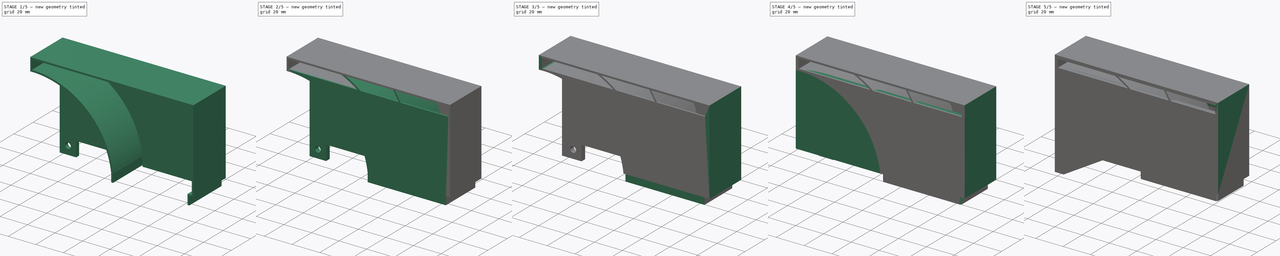
[diagram: build sequence overview — one tinted view per stage of 5, left to right]
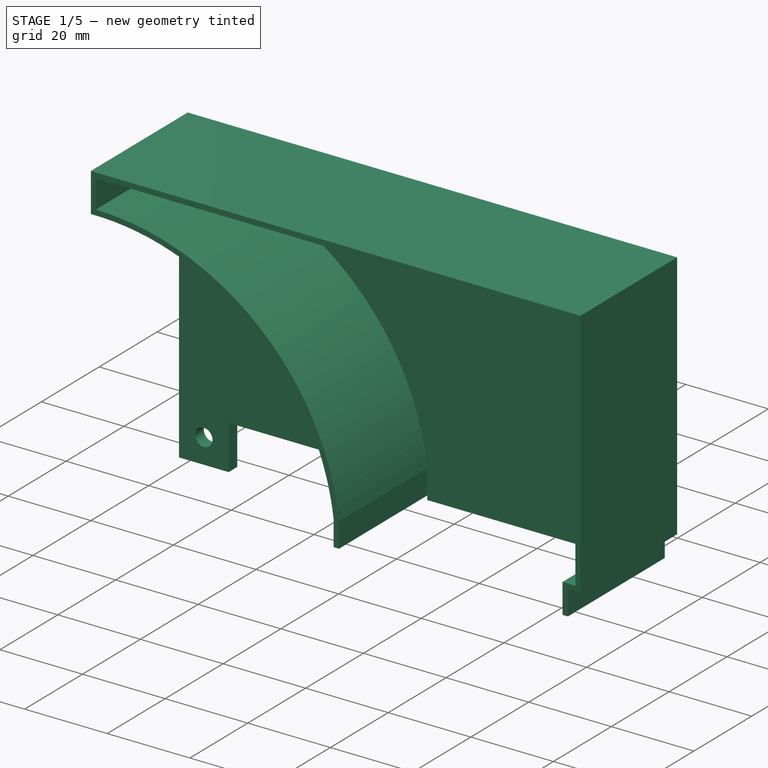
[diagram: stage 1 of 5 — iso view after this stage's code; geometry added in this stage tinted green]
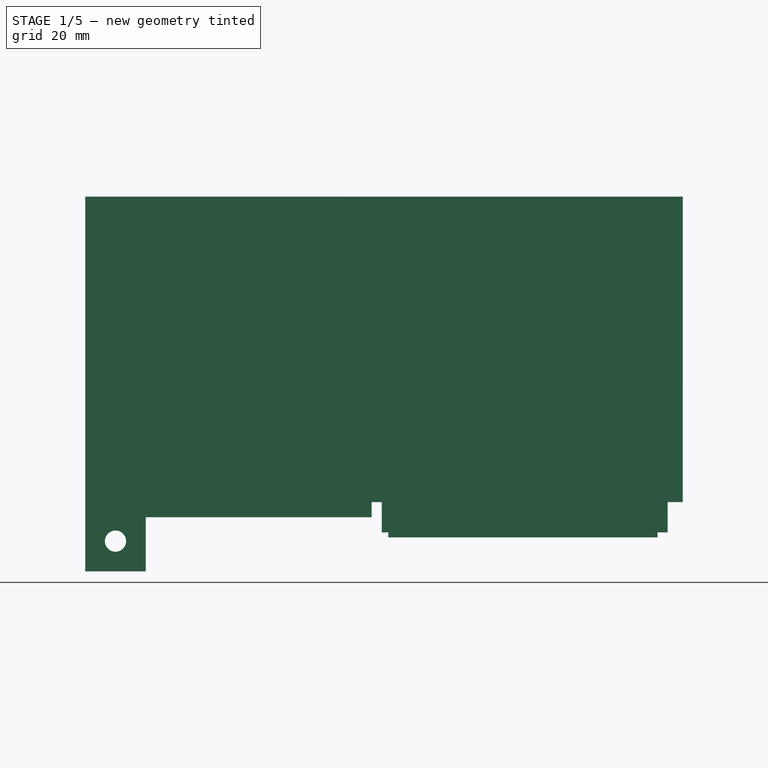
[diagram: stage 1 of 5 — front view after this stage's code; geometry added in this stage tinted green]
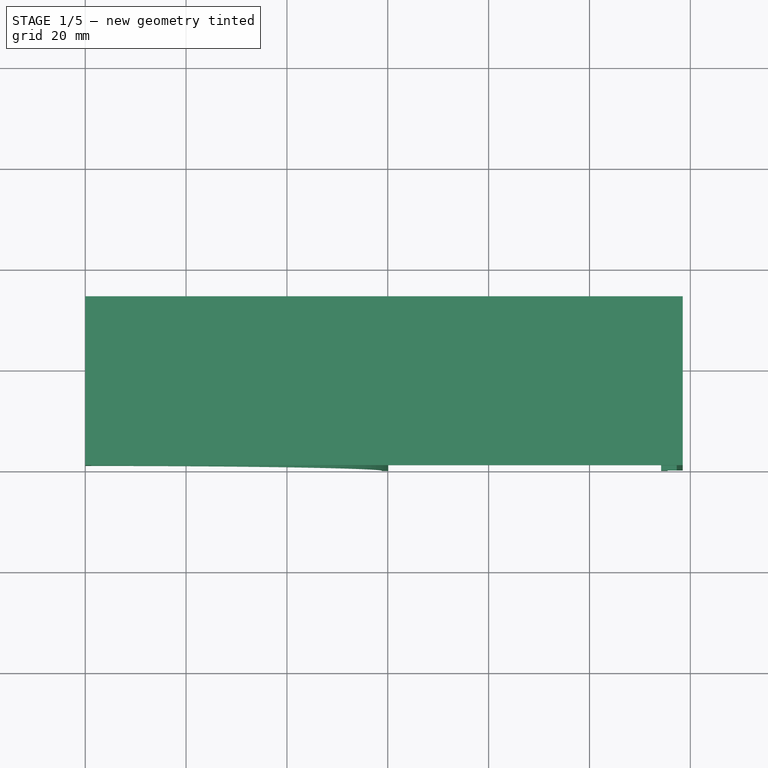
[diagram: stage 1 of 5 — top view after this stage's code; geometry added in this stage tinted green]
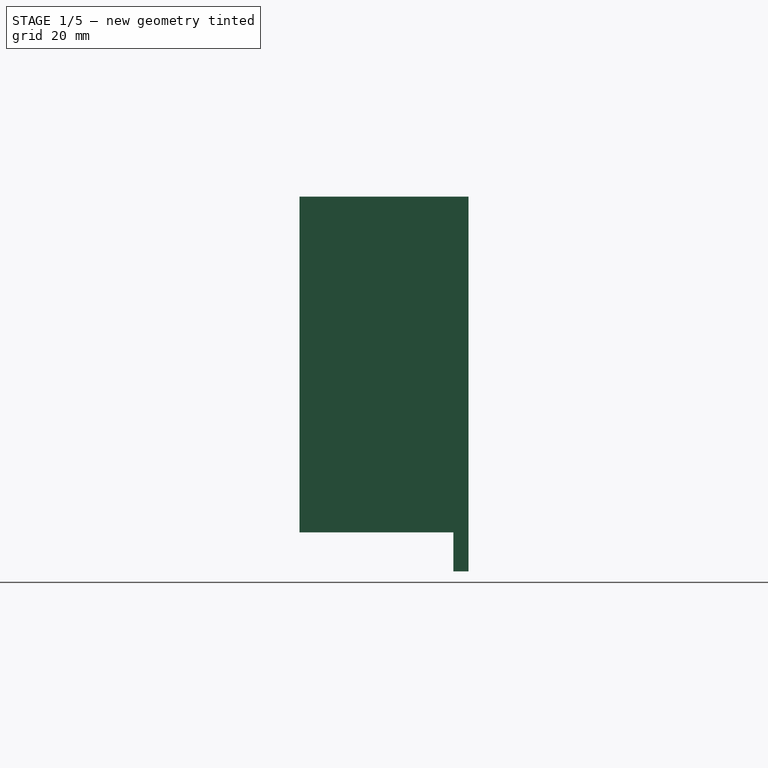
[diagram: stage 1 of 5 — right view after this stage's code; geometry added in this stage tinted green]
FCSTD DOCUMENT  (FreeCAD 1.0R38641 +468 (Git))
Label: k1_side_fan_duct
License: All rights reserved
LicenseURL: https://en.wikipedia.org/wiki/All_rights_reserved
objects: PartDesign::Pad×22, Sketcher::SketchObject×21, PartDesign::Pocket×14, Part::Feature×7, App::Part×3, PartDesign::FeatureBase×1, PartDesign::Plane×1, PartDesign::Chamfer×1, PartDesign::Line×1, PartDesign::Body×1
note: 165 computed .brp shape members not serialized (recipe doc carries the construction recipe); baked Part::Feature solids carry a one-line shape summary decoded from their .brp

FEATURE [Part::Feature] Part__Feature001  label="COMPOUND010"
  shape: bbox 119.1 x 36.35 x 67.32 mm, 176 faces (baked)
FEATURE [Part::Feature] Part__Feature002  label="COMPOUND011"
  shape: bbox 119.3 x 37.08 x 76.65 mm, 187 faces (baked)
FEATURE [PartDesign::FeatureBase] BaseFeature
  BaseFeature = -> Part__Feature002
  Suppressed = false
FEATURE [PartDesign::Pad] Pad
  BaseFeature = -> BaseFeature
  Direction = (0,1,0)
  Length = 10
  Length2 = 10
  Profile = -> BaseFeature [Face118,Face119,Face121,Face120]
  Refine = true
  Suppressed = false
  Type = 3
  UpToFace = -> BaseFeature [Face100]
FEATURE [PartDesign::Pocket] Pocket
  BaseFeature = -> Pad
  Direction = (0,0,-1)
  Length = 5
  Length2 = 5
  Profile = -> Pad [Face98]
  Refine = true
  Suppressed = false
  Type = 0
FEATURE [PartDesign::Plane] DatumPlane
  AttachmentSupport = -> [Pocket]
  Length = 165.347
  MapMode = 5
  Placement = pos=(0,32.5,0) rot=(0,0.707107,0.707107;3.14159rad)
  ResizeMode = 0
  Width = 114.425
FEATURE [Sketcher::SketchObject] Sketch
  ArcFitTolerance = 1e-06
  AttachmentSupport = -> [DatumPlane]
  ExternalGeometry = -> [Pocket]
  FullyConstrained = true
  MakeInternals = false
  MapMode = 2
  Placement = pos=(0,32.5,0) rot=(0,0.707107,0.707107;3.14159rad)
  sketch-geometry (17):
    g0: LineSegment StartX=-118.5 StartY=6 StartZ=0 EndX=-118.5 EndY=66.5778 EndZ=0
    g1: LineSegment StartX=-118.5 StartY=66.5778 StartZ=0 EndX=0 EndY=66.5778 EndZ=0
    g2: LineSegment StartX=0 StartY=66.5778 StartZ=0 EndX=0 EndY=-7.75 EndZ=0
    g3: LineSegment StartX=0 StartY=-7.75 StartZ=0 EndX=-12 EndY=-7.75 EndZ=0
    g4: LineSegment StartX=-12 StartY=-7.75 StartZ=0 EndX=-12 EndY=3 EndZ=0
    g5: LineSegment StartX=-12 StartY=3 StartZ=0 EndX=-56.7956 EndY=3 EndZ=0
    g6: LineSegment StartX=-56.7956 StartY=3 StartZ=0 EndX=-56.7956 EndY=6 EndZ=0
    g7: LineSegment StartX=-56.7956 StartY=6 StartZ=0 EndX=-58.7956 EndY=6 EndZ=0
    g8: LineSegment StartX=-58.7956 StartY=6 StartZ=0 EndX=-58.7956 EndY=0 EndZ=0
    g9: LineSegment StartX=-58.7956 StartY=0 StartZ=0 EndX=-60.0956 EndY=0 EndZ=0
    g10: LineSegment StartX=-60.0956 StartY=0 StartZ=0 EndX=-60.0956 EndY=-1 EndZ=0
    g11: LineSegment StartX=-118.5 StartY=6 StartZ=0 EndX=-115.5 EndY=6 EndZ=0
    g12: LineSegment StartX=-115.5 StartY=6 StartZ=0 EndX=-115.5 EndY=0 EndZ=0
    g13: LineSegment StartX=-115.5 StartY=0 StartZ=0 EndX=-113.5 EndY=-7e-16 EndZ=0
    g14: LineSegment StartX=-113.5 StartY=-7e-16 StartZ=0 EndX=-113.5 EndY=-1 EndZ=0
    g15: LineSegment StartX=-113.5 StartY=-1 StartZ=0 EndX=-60.0956 EndY=-1 EndZ=0
    g16: Circle CenterX=-6 CenterY=-1.75 CenterZ=0 NormalX=0 NormalY=0 NormalZ=1 AngleXU=0 Radius=2.1
  constraints (43):
    c: Coincident(g0,g-6)
    c: Vertical(g0)
    c: Coincident(g1,g0)
    c: PointOnObject(g1,g-2)
    c: Horizontal(g1)
    c: Coincident(g2,g1)
    c: Vertical(g2)
    c: Coincident(g3,g2)
    c: Horizontal(g3)
    c: Coincident(g4,g3)
    c: Vertical(g4)
    c: Coincident(g5,g4)
    c: Horizontal(g5)
    c: Coincident(g6,g5)
    c: Vertical(g6)
    c: Coincident(g7,g6)
    c: Coincident(g7,g-8)
    c: Horizontal(g7)
    c: Coincident(g8,g7)
    c: Coincident(g8,g-8)
    c: Coincident(g9,g8)
    c: Coincident(g9,g-3)
    c: Coincident(g10,g9)
    c: Vertical(g10)
    c: Coincident(g11,g0)
    c: Coincident(g11,g-7)
    c: Coincident(g12,g11)
    c: Coincident(g12,g-7)
    c: Coincident(g13,g12)
    c: Coincident(g13,g-3)
    c: Coincident(g14,g13)
    c: Vertical(g14)
    c: Coincident(g15,g14)
    c: Coincident(g15,g10)
    c: Horizontal(g15)
    c: Coincident(g16,g-4)
    c: Equal(g16,g-4)
    c: Distance(g14,g14) = 1
    c: Distance(g7,g7) = 2
    c: Distance(g16,g4) = 6
    c: PointOnObject(g-10,g5)
    c: Distance(g16,g3) = 6
    c: PointOnObject(g-5,g1)
FEATURE [Sketcher::SketchObject] Sketch001
  ArcFitTolerance = 1e-06
  AttachmentSupport = -> [DatumPlane]
  FullyConstrained = false
  MakeInternals = false
  MapMode = 5
  Placement = pos=(0,32.5,0) rot=(0,0.707107,0.707107;3.14159rad)
  sketch-geometry (4):
    g0: LineSegment StartX=-124.043 StartY=73.57 StartZ=0 EndX=-124.043 EndY=-11.6986 EndZ=0
    g1: LineSegment StartX=-124.043 StartY=-11.6986 StartZ=0 EndX=7.85642 EndY=-11.6986 EndZ=0
    g2: LineSegment StartX=7.85642 StartY=-11.6986 StartZ=0 EndX=7.85642 EndY=73.57 EndZ=0
    g3: LineSegment StartX=7.85642 StartY=73.57 StartZ=0 EndX=-124.043 EndY=73.57 EndZ=0
  constraints (8):
    c: Coincident(g0,g1)
    c: Coincident(g1,g2)
    c: Coincident(g2,g3)
    c: Coincident(g3,g0)
    c: Vertical(g0)
    c: Vertical(g2)
    c: Horizontal(g1)
    c: Horizontal(g3)
FEATURE [PartDesign::Pad] Pad001
  BaseFeature = -> Pocket
  Direction = (0,1,-2e-16)
  Length = 40
  Length2 = 10
  Profile = -> Sketch001
  ReferenceAxis = -> Sketch001 [N_Axis]
  Refine = true
  Reversed = true
  Suppressed = false
  Type = 0
FEATURE [PartDesign::Pad] Pad002
  BaseFeature = -> Pad001
  Direction = (0,1,-2e-16)
  Length = 1
  Length2 = 10
  Profile = -> Sketch
  ReferenceAxis = -> Sketch [N_Axis]
  Refine = true
  Suppressed = false
  Type = 0
FEATURE [PartDesign::Pocket] Pocket001
  BaseFeature = -> Pad002
  Direction = (0,1,0)
  Length = 0
  Length2 = 5
  Profile = -> Pad002 [Face5]
  Refine = true
  Suppressed = false
  Type = 3
  UpToFace = -> DatumPlane
FEATURE [Sketcher::SketchObject] Sketch002
  ArcFitTolerance = 1e-06
  AttachmentSupport = -> [Pocket001]
  ExternalGeometry = -> [Pocket001]
  FullyConstrained = true
  MakeInternals = false
  MapMode = 5
  Placement = pos=(0,32.5,-7.1e-15) rot=(1,0,0;1.5708rad)
  sketch-geometry (16):
    g0: LineSegment StartX=115.5 StartY=7.1e-15 StartZ=0 EndX=115.5 EndY=6 EndZ=0
    g1: LineSegment StartX=115.5 StartY=6 StartZ=0 EndX=118.5 EndY=6 EndZ=0
    g2: LineSegment StartX=115.5 StartY=7.1e-15 StartZ=0 EndX=114.2 EndY=0 EndZ=0
    g3: LineSegment StartX=114.2 StartY=0 StartZ=0 EndX=114.2 EndY=7.2 EndZ=0
    g4: LineSegment StartX=114.2 StartY=7.2 StartZ=0 EndX=117.3 EndY=7.2 EndZ=0
    g5: LineSegment StartX=58.7956 StartY=7.1e-15 StartZ=0 EndX=58.7956 EndY=6 EndZ=0
    g6: LineSegment StartX=58.7956 StartY=7.1e-15 StartZ=0 EndX=60.0956 EndY=7.2e-15 EndZ=0
    g7: LineSegment StartX=60.0956 StartY=7.2e-15 StartZ=0 EndX=60.0956 EndY=6 EndZ=0
    g8: LineSegment StartX=118.5 StartY=6 StartZ=0 EndX=118.5 EndY=66.5778 EndZ=0
    g9: LineSegment StartX=118.5 StartY=66.5778 StartZ=0 EndX=0 EndY=66.5778 EndZ=0
    g10: LineSegment StartX=0 StartY=66.5778 StartZ=0 EndX=0 EndY=57.1505 EndZ=0
    g11: LineSegment StartX=117.3 StartY=7.2 StartZ=0 EndX=117.3 EndY=65.2778 EndZ=0
    g12: LineSegment StartX=1.2 StartY=65.2778 StartZ=0 EndX=1.2 EndY=58.4541 EndZ=0
    g13: ArcOfCircle CenterX=1.2 CenterY=-0.837069 CenterZ=0 NormalX=0 NormalY=0 NormalZ=1 AngleXU=0 Radius=58 StartAngle=0.118155 EndAngle=1.59149
    g14: ArcOfCircle CenterX=1.2 CenterY=-0.837069 CenterZ=0 NormalX=0 NormalY=0 NormalZ=1 AngleXU=0 Radius=59.2911 StartAngle=0.115571 EndAngle=1.5708
    g15: LineSegment StartX=1.2 StartY=65.2778 StartZ=0 EndX=117.3 EndY=65.2778 EndZ=0
  constraints (41):
    c: Coincident(g0,g-6)
    c: Coincident(g0,g-6)
    c: Coincident(g1,g0)
    c: Coincident(g1,g-5)
    c: Coincident(g2,g0)
    c: PointOnObject(g2,g-1)
    c: Coincident(g3,g2)
    c: Vertical(g3)
    c: Coincident(g4,g3)
    c: Horizontal(g4)
    c: Coincident(g5,g-7)
    c: Coincident(g5,g-7)
    c: Coincident(g6,g5)
    c: Coincident(g6,g-8)
    c: Coincident(g7,g6)
    c: Vertical(g7)
    c: Equal(g6,g2)
    c: Distance(g0,g4) = 1.2
    c: Coincident(g8,g1)
    c: Coincident(g8,g-4)
    c: Coincident(g9,g8)
    c: Coincident(g9,g-3)
    c: Coincident(g10,g9)
    c: Vertical(g10)
    c: Coincident(g11,g4)
    c: Vertical(g11)
    c: Vertical(g12)
    c: Distance(g4,g8) = 1.2
    c: Distance(g11,g9) = 1.3
    c: Coincident(g13,g5)
    c: Coincident(g13,g10)
    c: Coincident(g14,g7)
    c: Coincident(g14,g12)
    c: Distance(g12,g10) = 1.2
    c: Coincident(g14,g13)
    c: Perpendicular(g14,g12)
    c: Coincident(g15,g12)
    c: Coincident(g15,g11)
    c: Horizontal(g15)
    c: Equal(g7,g5)
    c: Radius(g13) = 58
FEATURE [PartDesign::Pad] Pad003
  BaseFeature = -> Pocket001
  Direction = (0,-1,2e-16)
  Length = 32.5
  Length2 = 10
  Profile = -> Sketch002
  ReferenceAxis = -> Sketch002 [N_Axis]
  Refine = true
  Suppressed = false
  Type = 0
FEATURE [PartDesign::Pad] Pad004
  BaseFeature = -> Pad003
  Direction = (0,1,0)
  Length = 3
  Length2 = 10
  Profile = -> Pad003 [Face1]
  Refine = true
  Reversed = true
  Suppressed = false
  Type = 0
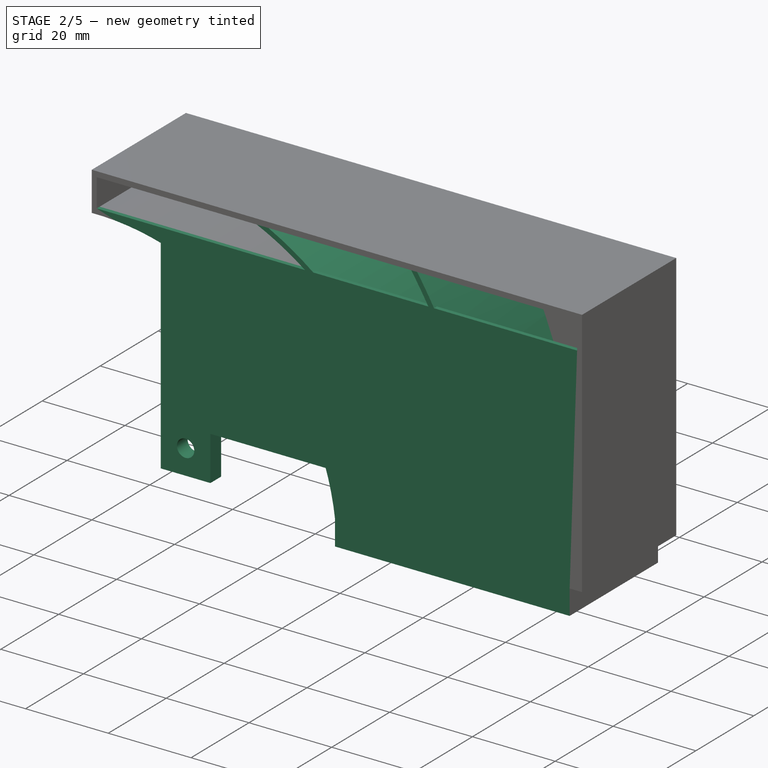
[diagram: stage 2 of 5 — iso view after this stage's code; geometry added in this stage tinted green]
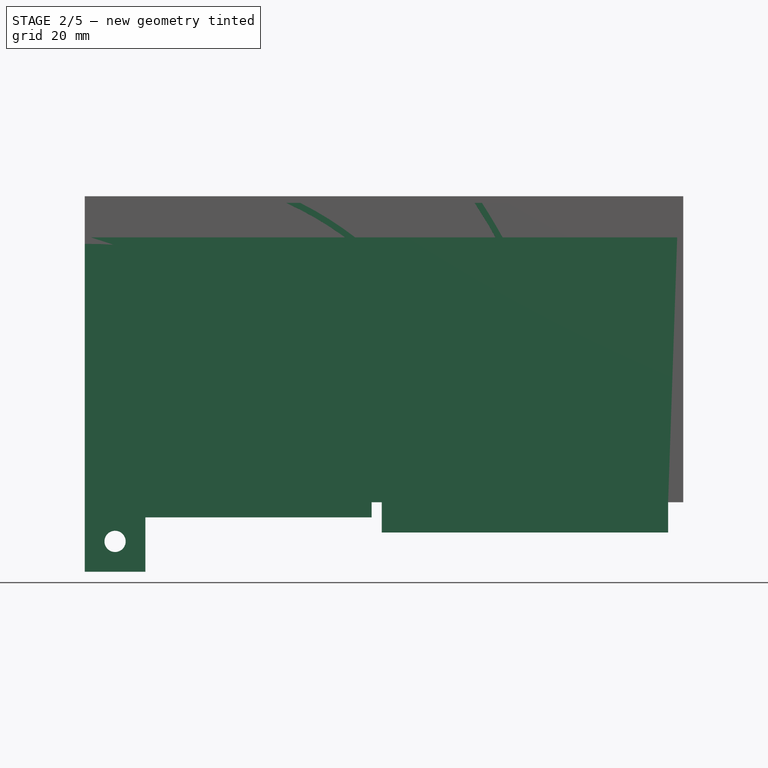
[diagram: stage 2 of 5 — front view after this stage's code; geometry added in this stage tinted green]
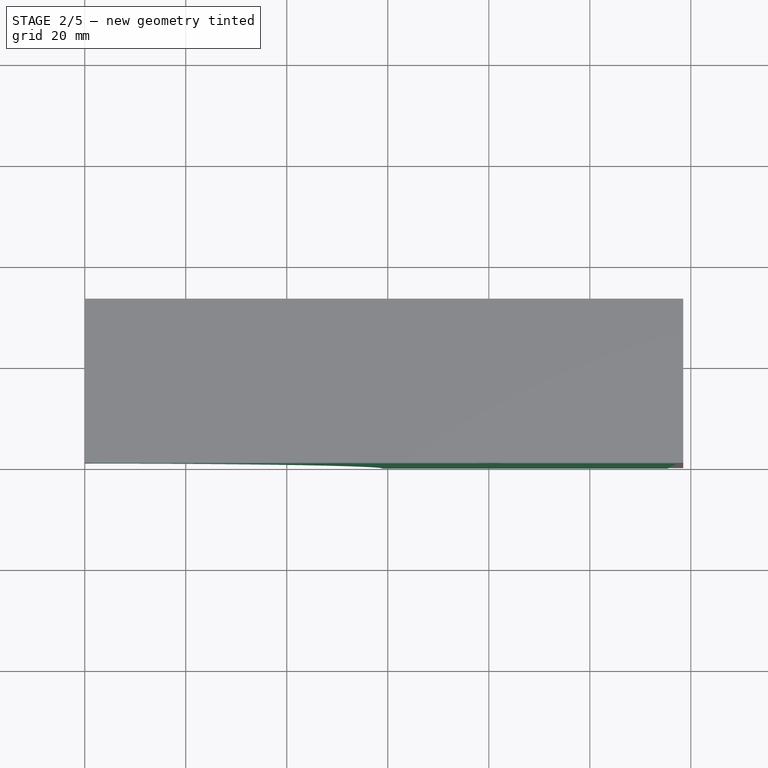
[diagram: stage 2 of 5 — top view after this stage's code; geometry added in this stage tinted green]
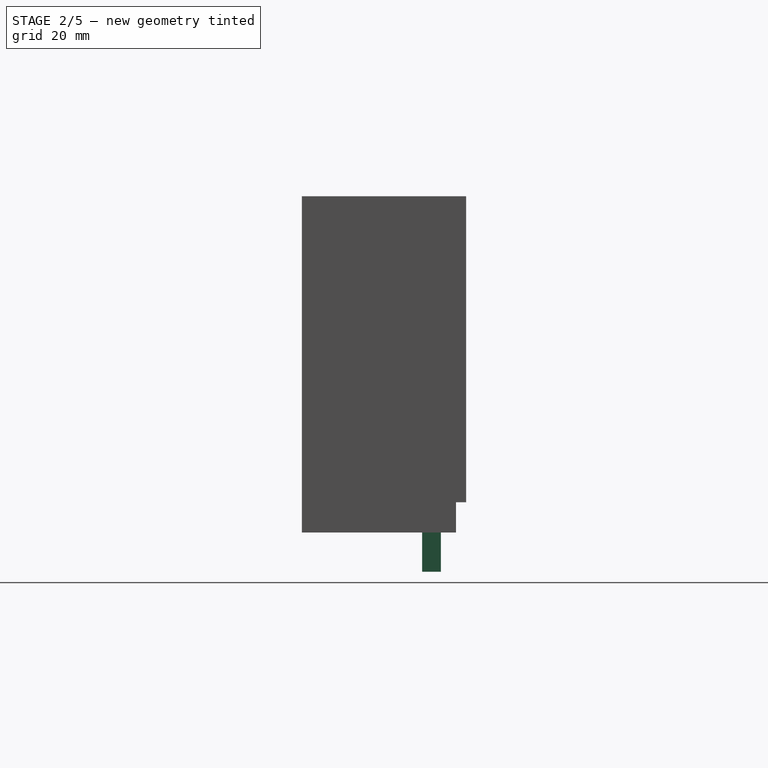
[diagram: stage 2 of 5 — right view after this stage's code; geometry added in this stage tinted green]
FEATURE [PartDesign::Pocket] Pocket002
  BaseFeature = -> Pad004
  Direction = (0,-1,0)
  Length = 1
  Length2 = 5
  Profile = -> Pad004 [Face13]
  Refine = true
  Suppressed = false
  Type = 0
FEATURE [PartDesign::Pad] Pad005
  BaseFeature = -> Pocket002
  Direction = (0,-1,0)
  Length = 6.7
  Length2 = 10
  Profile = -> Pocket002 [Face22]
  Refine = true
  Suppressed = false
  Type = 0
FEATURE [Sketcher::SketchObject] Sketch003
  ArcFitTolerance = 1e-06
  AttachmentSupport = -> [Pad005]
  ExternalGeometry = -> [Pad005]
  FullyConstrained = true
  MakeInternals = false
  MapMode = 5
  Placement = pos=(0,32.5,0) rot=(0,0.707107,0.707107;3.14159rad)
  sketch-geometry (4):
    g0: LineSegment StartX=-56.7956 StartY=6 StartZ=0 EndX=-56.7956 EndY=-7.75 EndZ=0
    g1: LineSegment StartX=-56.7956 StartY=-7.75 StartZ=0 EndX=0 EndY=-7.75 EndZ=0
    g2: LineSegment StartX=0 StartY=-7.75 StartZ=0 EndX=0 EndY=6 EndZ=0
    g3: LineSegment StartX=0 StartY=6 StartZ=0 EndX=-56.7956 EndY=6 EndZ=0
  constraints (10):
    c: Coincident(g0,g1)
    c: Coincident(g1,g2)
    c: Coincident(g2,g3)
    c: Coincident(g3,g0)
    c: Vertical(g0)
    c: Vertical(g2)
    c: Horizontal(g1)
    c: Horizontal(g3)
    c: Coincident(g0,g-3)
    c: Coincident(g1,g-4)
FEATURE [PartDesign::Pocket] Pocket003
  BaseFeature = -> Pad005
  Direction = (0,-1,2e-16)
  Length = 5
  Length2 = 5
  Profile = -> Sketch003
  ReferenceAxis = -> Sketch003 [N_Axis]
  Refine = true
  Suppressed = false
  Type = 0
FEATURE [Sketcher::SketchObject] Sketch004
  ArcFitTolerance = 1e-06
  AttachmentSupport = -> [Pocket003]
  ExternalGeometry = -> [Pocket003]
  FullyConstrained = true
  MakeInternals = false
  MapMode = 5
  Placement = pos=(0,30.5,0) rot=(1,0,0;1.5708rad)
  sketch-geometry (4):
    g0: LineSegment StartX=60.0956 StartY=6 StartZ=0 EndX=60.0956 EndY=0 EndZ=0
    g1: LineSegment StartX=60.0956 StartY=0 StartZ=0 EndX=114.2 EndY=0 EndZ=0
    g2: LineSegment StartX=114.2 StartY=0 StartZ=0 EndX=114.2 EndY=6 EndZ=0
    g3: LineSegment StartX=114.2 StartY=6 StartZ=0 EndX=60.0956 EndY=6 EndZ=0
  constraints (10):
    c: Coincident(g0,g1)
    c: Coincident(g1,g2)
    c: Coincident(g2,g3)
    c: Coincident(g3,g0)
    c: Vertical(g0)
    c: Vertical(g2)
    c: Horizontal(g1)
    c: Horizontal(g3)
    c: Coincident(g0,g-3)
    c: Coincident(g1,g-4)
FEATURE [PartDesign::Pad] Pad006
  BaseFeature = -> Pocket003
  Direction = (0,-1,2e-16)
  Length = 1.3
  Length2 = 10
  Profile = -> Sketch004
  ReferenceAxis = -> Sketch004 [N_Axis]
  Refine = true
  Suppressed = false
  Type = 0
FEATURE [Sketcher::SketchObject] Sketch005
  ArcFitTolerance = 1e-06
  AttachmentSupport = -> [Pad006]
  ExternalGeometry = -> [Pad006]
  FullyConstrained = true
  MakeInternals = false
  MapMode = 5
  Placement = pos=(0,32.5,0) rot=(0,0.707107,0.707107;3.14159rad)
  sketch-geometry (4):
    g0: LineSegment StartX=-115.5 StartY=6 StartZ=0 EndX=-115.5 EndY=-1 EndZ=0
    g1: LineSegment StartX=-115.5 StartY=-1 StartZ=0 EndX=-58.7956 EndY=-1 EndZ=0
    g2: LineSegment StartX=-58.7956 StartY=-1 StartZ=0 EndX=-58.7956 EndY=6 EndZ=0
    g3: LineSegment StartX=-58.7956 StartY=6 StartZ=0 EndX=-115.5 EndY=6 EndZ=0
  constraints (11):
    c: Coincident(g0,g1)
    c: Coincident(g1,g2)
    c: Coincident(g2,g3)
    c: Coincident(g3,g0)
    c: Vertical(g0)
    c: Vertical(g2)
    c: Horizontal(g1)
    c: Horizontal(g3)
    c: Coincident(g0,g-3)
    c: PointOnObject(g2,g-5)
    c: PointOnObject(g1,g-4)
FEATURE [PartDesign::Pocket] Pocket004
  BaseFeature = -> Pad006
  Direction = (0,-1,2e-16)
  Length = 2
  Length2 = 5
  Profile = -> Sketch005
  ReferenceAxis = -> Sketch005 [N_Axis]
  Refine = true
  Suppressed = false
  Type = 0
FEATURE [Sketcher::SketchObject] Sketch006
  ArcFitTolerance = 1e-06
  AttachmentSupport = -> [Pocket004]
  ExternalGeometry = -> [Pocket004]
  FullyConstrained = true
  MakeInternals = false
  MapMode = 5
  Placement = pos=(0,30.5,0) rot=(1,0,0;1.5708rad)
  sketch-geometry (8):
    g0: ArcOfCircle CenterX=13.0231 CenterY=6 CenterZ=0 NormalX=0 NormalY=0 NormalZ=1 AngleXU=0 Radius=65.0725 StartAngle=0 EndAngle=1.14558
    g1: ArcOfCircle CenterX=13.0231 CenterY=6 CenterZ=0 NormalX=0 NormalY=0 NormalZ=1 AngleXU=0 Radius=66.2725 StartAngle=0 EndAngle=1.10721
    g2: LineSegment StartX=78.0956 StartY=6 StartZ=0 EndX=79.2956 EndY=6 EndZ=0
    g3: LineSegment StartX=39.8667 StartY=65.2778 StartZ=0 EndX=42.6574 EndY=65.2778 EndZ=0
    g4: ArcOfCircle CenterX=-12.5981 CenterY=6 CenterZ=0 NormalX=0 NormalY=0 NormalZ=1 AngleXU=0 Radius=107.598 StartAngle=8.9e-15 EndAngle=0.583464
    g5: ArcOfCircle CenterX=-12.5981 CenterY=6 CenterZ=0 NormalX=0 NormalY=0 NormalZ=1 AngleXU=0 Radius=108.798 StartAngle=8e-15 EndAngle=0.5762
    g6: LineSegment StartX=77.1989 StartY=65.2778 StartZ=0 EndX=78.6333 EndY=65.2778 EndZ=0
    g7: LineSegment StartX=95 StartY=6 StartZ=0 EndX=96.2 EndY=6 EndZ=0
  constraints (26):
    c: PointOnObject(g0,g-3)
    c: PointOnObject(g0,g-4)
    c: Coincident(g1,g0)
    c: PointOnObject(g1,g-3)
    c: PointOnObject(g1,g-4)
    c: Coincident(g2,g0)
    c: Coincident(g2,g1)
    c: Coincident(g3,g0)
    c: Coincident(g3,g1)
    c: PointOnObject(g4,g-3)
    c: PointOnObject(g4,g-4)
    c: Coincident(g5,g4)
    c: PointOnObject(g5,g-3)
    c: PointOnObject(g5,g-4)
    c: Coincident(g6,g4)
    c: Coincident(g6,g5)
    c: Coincident(g7,g4)
    c: Coincident(g7,g5)
    c: Distance(g2,g2) = 1.2
    c: Distance(g7,g7) = 1.2
    c: Distance(g0,g-3) = 38.6667
    c: Distance(g5,g-3) = 38.6667
    c: Distance(g0,g-4) = 18
    c: Distance(g5,g-4) = 18
    c: Perpendicular(g0,g-4)
    c: Perpendicular(g4,g-4)
FEATURE [PartDesign::Pad] Pad007
  BaseFeature = -> Pocket004
  Direction = (0,-1,2e-16)
  Length = 10
  Length2 = 10
  Profile = -> Sketch006
  ReferenceAxis = -> Sketch006 [N_Axis]
  Refine = true
  Suppressed = false
  Type = 3
  UpToFace = -> Pocket004 [Face1]
FEATURE [Sketcher::SketchObject] Sketch007
  ArcFitTolerance = 1e-06
  AttachmentSupport = -> [Pad007]
  ExternalGeometry = -> [Pad007]
  FullyConstrained = true
  MakeInternals = false
  MapMode = 5
  Placement = pos=(0,1.06e-14,0) rot=(1,0,0;1.5708rad)
  sketch-geometry (8):
    g0: LineSegment StartX=0 StartY=58.4541 StartZ=0 EndX=118.5 EndY=58.4541 EndZ=0
    g1: LineSegment StartX=118.5 StartY=58.4541 StartZ=0 EndX=118.5 EndY=6 EndZ=0
    g2: LineSegment StartX=118.5 StartY=6 StartZ=0 EndX=115.5 EndY=6 EndZ=0
    g3: LineSegment StartX=115.5 StartY=0 StartZ=0 EndX=115.5 EndY=6 EndZ=0
    g4: LineSegment StartX=115.5 StartY=0 StartZ=0 EndX=58.7956 EndY=0 EndZ=0
    g5: LineSegment StartX=58.7956 StartY=0 StartZ=0 EndX=58.7956 EndY=6 EndZ=0
    g6: LineSegment StartX=0 StartY=58.4541 StartZ=0 EndX=1.0059e-12 EndY=57.1505 EndZ=0
    g7: ArcOfCircle CenterX=1.20001 CenterY=-0.837061 CenterZ=0 NormalX=0 NormalY=0 NormalZ=1 AngleXU=0 Radius=58 StartAngle=0.118155 EndAngle=1.59149
  constraints (19):
    c: PointOnObject(g0,g-2)
    c: PointOnObject(g0,g-5)
    c: Horizontal(g0)
    c: PointOnObject(g-3,g0)
    c: Coincident(g1,g0)
    c: Coincident(g1,g-5)
    c: Coincident(g2,g1)
    c: Coincident(g2,g-6)
    c: Coincident(g3,g-6)
    c: Coincident(g3,g2)
    c: Coincident(g4,g3)
    c: Coincident(g4,g-7)
    c: Coincident(g5,g4)
    c: Coincident(g5,g-7)
    c: Coincident(g6,g0)
    c: Coincident(g6,g-4)
    c: Coincident(g7,g5)
    c: Coincident(g7,g6)
    c: Tangent(g7,g-4)
FEATURE [PartDesign::Pad] Pad008
  BaseFeature = -> Pad007
  Direction = (0,-1,2e-16)
  Length = 1
  Length2 = 10
  Profile = -> Sketch007
  ReferenceAxis = -> Sketch007 [N_Axis]
  Refine = true
  Reversed = true
  Suppressed = false
  Type = 0
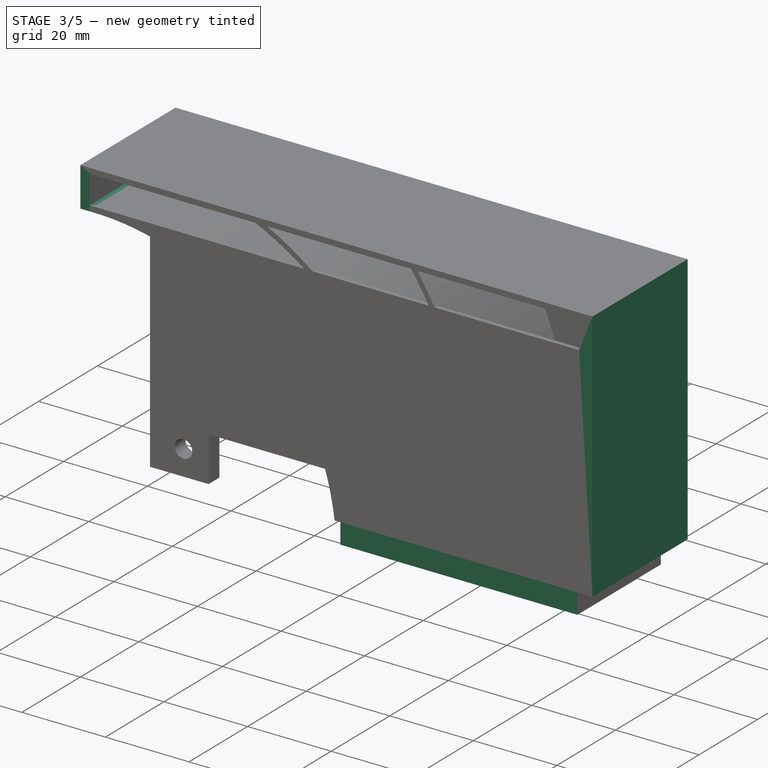
[diagram: stage 3 of 5 — iso view after this stage's code; geometry added in this stage tinted green]
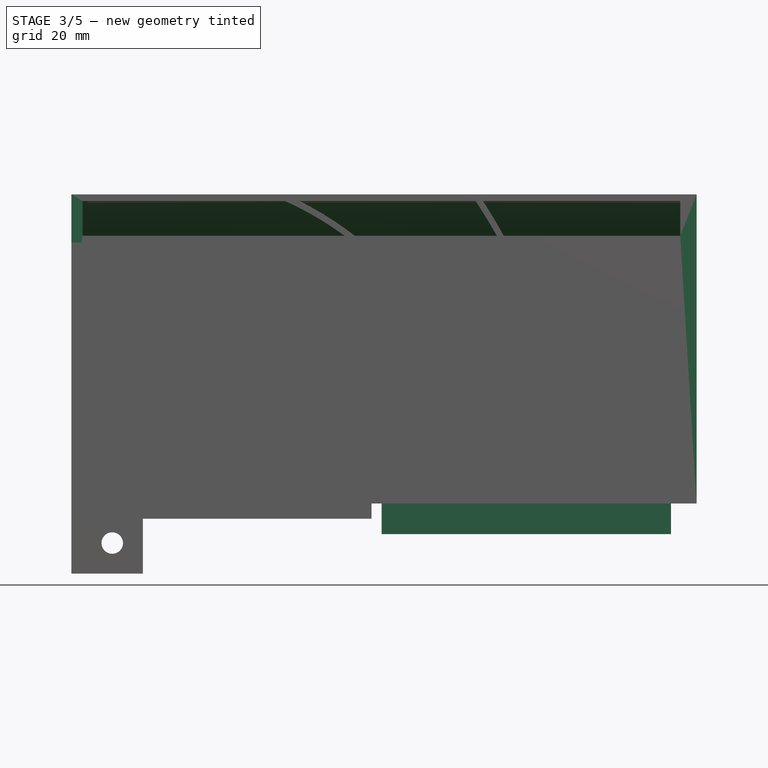
[diagram: stage 3 of 5 — front view after this stage's code; geometry added in this stage tinted green]
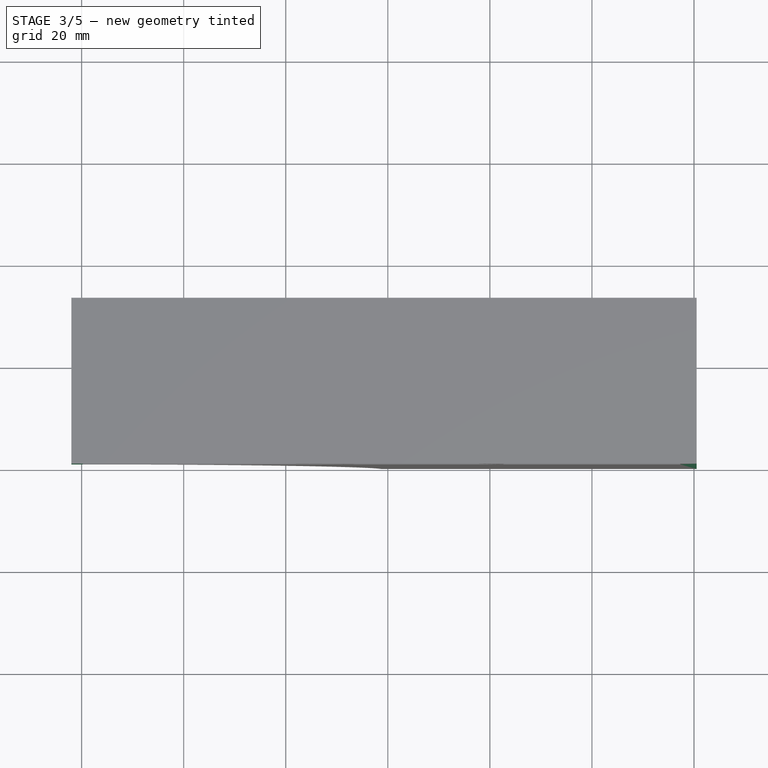
[diagram: stage 3 of 5 — top view after this stage's code; geometry added in this stage tinted green]
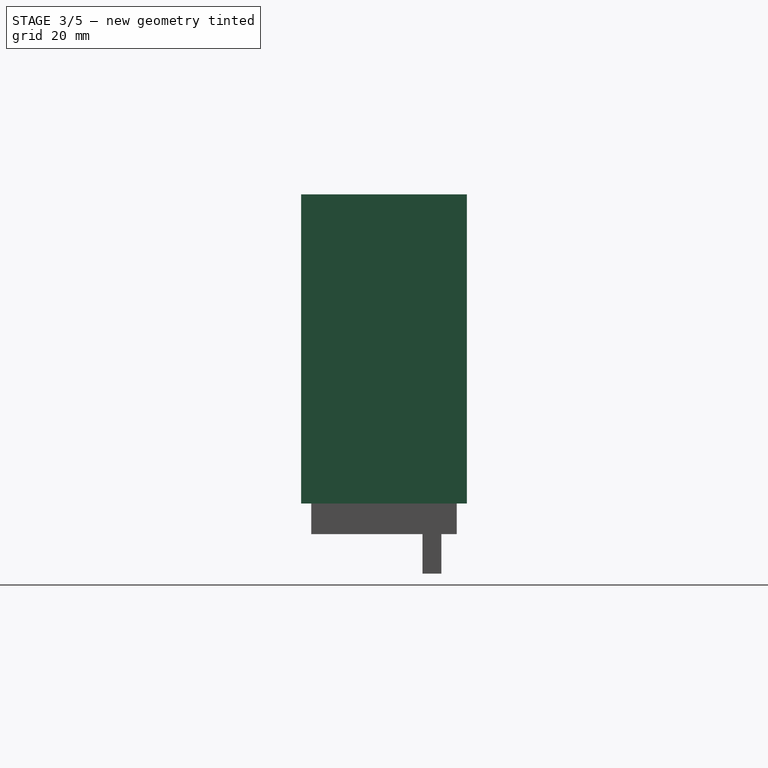
[diagram: stage 3 of 5 — right view after this stage's code; geometry added in this stage tinted green]
FEATURE [Sketcher::SketchObject] Sketch008
  ArcFitTolerance = 1e-06
  AttachmentSupport = -> [Pad008]
  ExternalGeometry = -> [Pad008]
  FullyConstrained = true
  MakeInternals = false
  MapMode = 5
  Placement = pos=(0,1.07e-14,0) rot=(1,0,0;1.5708rad)
  sketch-geometry (4):
    g0: LineSegment StartX=58.7956 StartY=6 StartZ=0 EndX=58.7956 EndY=0 EndZ=0
    g1: LineSegment StartX=58.7956 StartY=0 StartZ=0 EndX=115.5 EndY=0 EndZ=0
    g2: LineSegment StartX=115.5 StartY=0 StartZ=0 EndX=115.5 EndY=6 EndZ=0
    g3: LineSegment StartX=115.5 StartY=6 StartZ=0 EndX=58.7956 EndY=6 EndZ=0
  constraints (10):
    c: Coincident(g0,g1)
    c: Coincident(g1,g2)
    c: Coincident(g2,g3)
    c: Coincident(g3,g0)
    c: Vertical(g0)
    c: Vertical(g2)
    c: Horizontal(g1)
    c: Horizontal(g3)
    c: Coincident(g0,g-3)
    c: Coincident(g1,g-4)
FEATURE [PartDesign::Pad] Pad009
  BaseFeature = -> Pad008
  Direction = (0,-1,2e-16)
  Length = 3.3
  Length2 = 10
  Profile = -> Sketch008
  ReferenceAxis = -> Sketch008 [N_Axis]
  Refine = true
  Reversed = true
  Suppressed = false
  Type = 0
FEATURE [Sketcher::SketchObject] Sketch009
  ArcFitTolerance = 1e-06
  AttachmentSupport = -> [Pad009]
  ExternalGeometry = -> [Pad009]
  FullyConstrained = true
  MakeInternals = false
  MapMode = 5
  Placement = pos=(0,1e-16,0) rot=(1,0,0;1.5708rad)
  sketch-geometry (4):
    g0: LineSegment StartX=58.7956 StartY=6 StartZ=0 EndX=58.7956 EndY=0 EndZ=0
    g1: LineSegment StartX=58.7956 StartY=0 StartZ=0 EndX=115.5 EndY=0 EndZ=0
    g2: LineSegment StartX=115.5 StartY=0 StartZ=0 EndX=115.5 EndY=6 EndZ=0
    g3: LineSegment StartX=115.5 StartY=6 StartZ=0 EndX=58.7956 EndY=6 EndZ=0
  constraints (10):
    c: Coincident(g0,g1)
    c: Coincident(g1,g2)
    c: Coincident(g2,g3)
    c: Coincident(g3,g0)
    c: Vertical(g0)
    c: Vertical(g2)
    c: Horizontal(g1)
    c: Horizontal(g3)
    c: Coincident(g0,g-3)
    c: Coincident(g1,g-4)
FEATURE [PartDesign::Pocket] Pocket005
  BaseFeature = -> Pad009
  Direction = (0,1,-2e-16)
  Length = 2
  Length2 = 5
  Profile = -> Sketch009
  ReferenceAxis = -> Sketch009 [N_Axis]
  Refine = true
  Suppressed = false
  Type = 0
FEATURE [Sketcher::SketchObject] Sketch010
  ArcFitTolerance = 1e-06
  AttachmentSupport = -> [Pocket005]
  ExternalGeometry = -> [Pocket005]
  FullyConstrained = true
  MakeInternals = false
  MapMode = 5
  Placement = pos=(0,1.3e-15,6) rot=(1,0,0;3.14159rad)
  sketch-geometry (4):
    g0: LineSegment StartX=58.7956 StartY=0 StartZ=0 EndX=58.7956 EndY=-3.3 EndZ=0
    g1: LineSegment StartX=58.7956 StartY=-3.3 StartZ=0 EndX=118.5 EndY=-3.3 EndZ=0
    g2: LineSegment StartX=118.5 StartY=-3.3 StartZ=0 EndX=118.5 EndY=0 EndZ=0
    g3: LineSegment StartX=118.5 StartY=0 StartZ=0 EndX=58.7956 EndY=0 EndZ=0
  constraints (11):
    c: Coincident(g0,g1)
    c: Coincident(g1,g2)
    c: Coincident(g2,g3)
    c: Coincident(g3,g0)
    c: Vertical(g2)
    c: Horizontal(g1)
    c: Horizontal(g3)
    c: Coincident(g0,g-3)
    c: PointOnObject(g1,g-4)
    c: Vertical(g0)
    c: PointOnObject(g-6,g1)
FEATURE [PartDesign::Pad] Pad010
  BaseFeature = -> Pocket005
  Direction = (0,0,-1)
  Length = 1.2
  Length2 = 10
  Profile = -> Sketch010
  ReferenceAxis = -> Sketch010 [N_Axis]
  Refine = true
  Reversed = true
  Suppressed = false
  Type = 0
FEATURE [Sketcher::SketchObject] Sketch011
  ArcFitTolerance = 1e-06
  AttachmentSupport = -> [Pad010]
  ExternalGeometry = -> [Pad010]
  FullyConstrained = true
  MakeInternals = false
  MapMode = 5
  Placement = pos=(118.5,0,0) rot=(0.57735,0.57735,0.57735;2.0944rad)
  sketch-geometry (3):
    g0: ArcOfCircle CenterX=4.5 CenterY=38.5778 CenterZ=0 NormalX=0 NormalY=0 NormalZ=1 AngleXU=0 Radius=28 StartAngle=0 EndAngle=1.5708
    g1: LineSegment StartX=32.5 StartY=38.5778 StartZ=0 EndX=32.5 EndY=66.5778 EndZ=0
    g2: LineSegment StartX=32.5 StartY=66.5778 StartZ=0 EndX=4.5 EndY=66.5778 EndZ=0
  constraints (7):
    c: PointOnObject(g0,g-4)
    c: PointOnObject(g0,g-3)
    c: Coincident(g1,g-4)
    c: Coincident(g2,g1)
    c: Tangent(g2,g0) = -1.5708
    c: Tangent(g1,g0) = -1.5708
    c: Radius(g0) = 28
FEATURE [PartDesign::Pocket] Pocket006
  BaseFeature = -> Pad010
  Direction = (-1,0,0)
  Length = 5
  Length2 = 5
  Profile = -> Sketch011
  ReferenceAxis = -> Sketch011 [N_Axis]
  Refine = true
  Suppressed = false
  Type = 1
FEATURE [Sketcher::SketchObject] Sketch012
  ArcFitTolerance = 1e-06
  AttachmentSupport = -> [Pocket006]
  ExternalGeometry = -> [Pocket006]
  FullyConstrained = true
  MakeInternals = false
  MapMode = 5
  Placement = pos=(118.5,0,0) rot=(0.57735,0.57735,0.57735;2.0944rad)
  sketch-geometry (3):
    g0: LineSegment StartX=4.5 StartY=66.5778 StartZ=0 EndX=32.5 EndY=66.5778 EndZ=0
    g1: LineSegment StartX=32.5 StartY=66.5778 StartZ=0 EndX=32.5 EndY=38.5778 EndZ=0
    g2: ArcOfCircle CenterX=4.49999 CenterY=38.5777 CenterZ=0 NormalX=0 NormalY=0 NormalZ=1 AngleXU=0 Radius=28 StartAngle=3.40948e-07 EndAngle=1.5708
  constraints (8):
    c: Coincident(g1,g0)
    c: Coincident(g1,g-5)
    c: Vertical(g1)
    c: Horizontal(g0)
    c: Coincident(g0,g-5)
    c: Coincident(g2,g0)
    c: Tangent(g2,g-5)
    c: Coincident(g2,g1)
FEATURE [PartDesign::Pad] Pad011
  BaseFeature = -> Pocket006
  Direction = (1,0,0)
  Length = 10
  Length2 = 10
  Profile = -> Sketch012
  ReferenceAxis = -> Sketch012 [N_Axis]
  Refine = true
  Suppressed = false
  Type = 3
  UpToFace = -> Pocket006 [Face2]
FEATURE [PartDesign::Pad] Pad012
  BaseFeature = -> Pad011
  Direction = (-1,0,0)
  Length = 2
  Length2 = 10
  Profile = -> Pad011 [Face59]
  Refine = true
  Suppressed = false
  Type = 0
FEATURE [PartDesign::Pad] Pad013
  BaseFeature = -> Pad012
  Direction = (1,3e-16,3e-16)
  Length = 2
  Length2 = 10
  Profile = -> Pad012 [Face15]
  Refine = true
  Suppressed = false
  Type = 0
FEATURE [PartDesign::Pocket] Pocket007
  BaseFeature = -> Pad013
  Direction = (-1,0,0)
  Length = 1
  Length2 = 5
  Profile = -> Pad013 [Face22]
  Refine = true
  Suppressed = false
  Type = 0
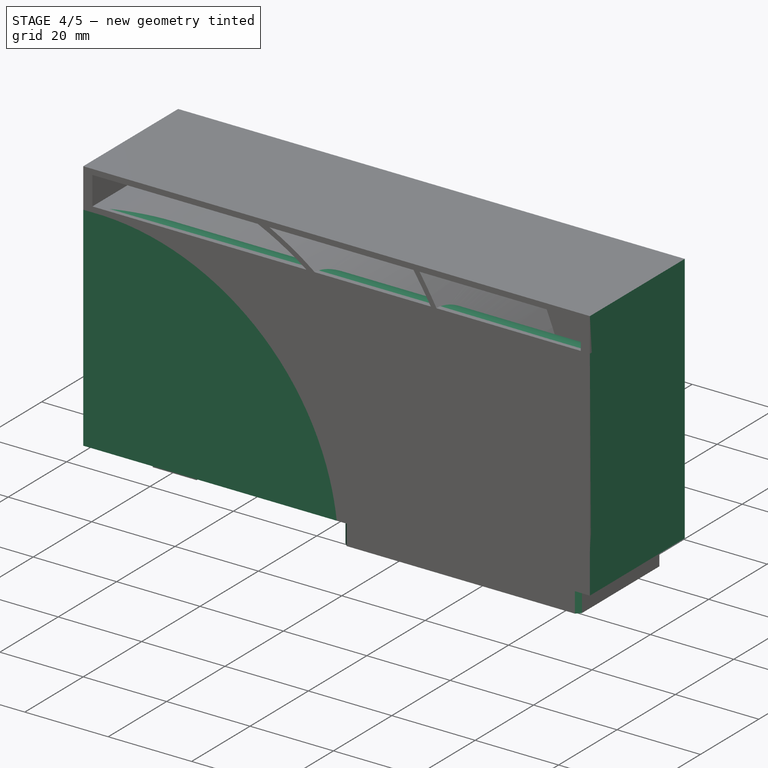
[diagram: stage 4 of 5 — iso view after this stage's code; geometry added in this stage tinted green]
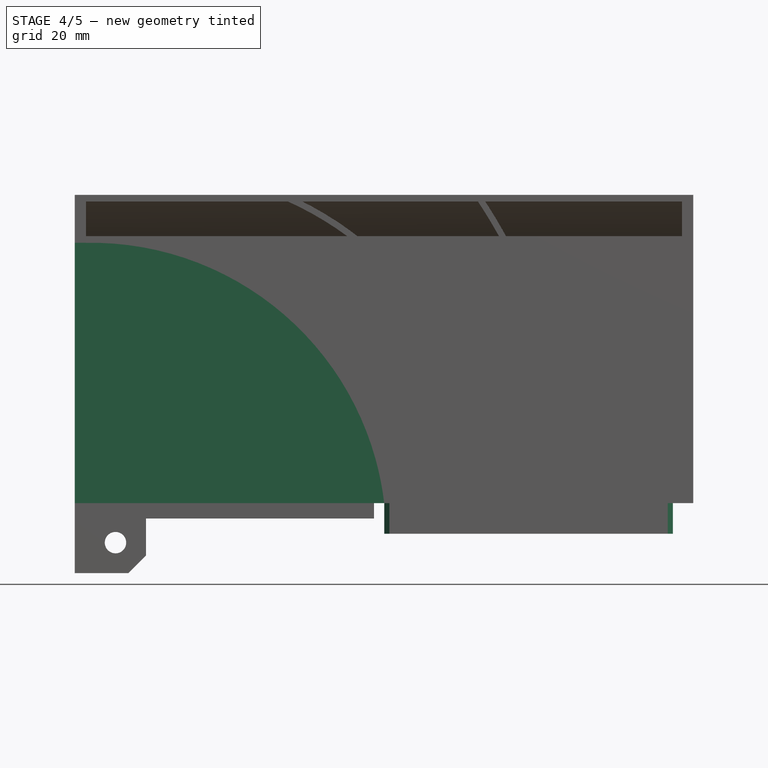
[diagram: stage 4 of 5 — front view after this stage's code; geometry added in this stage tinted green]
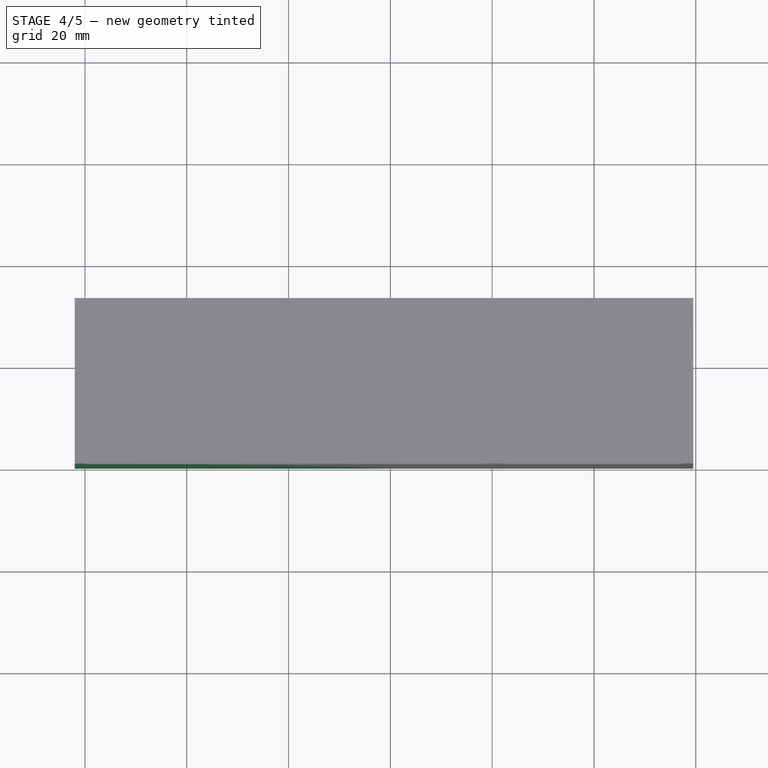
[diagram: stage 4 of 5 — top view after this stage's code; geometry added in this stage tinted green]
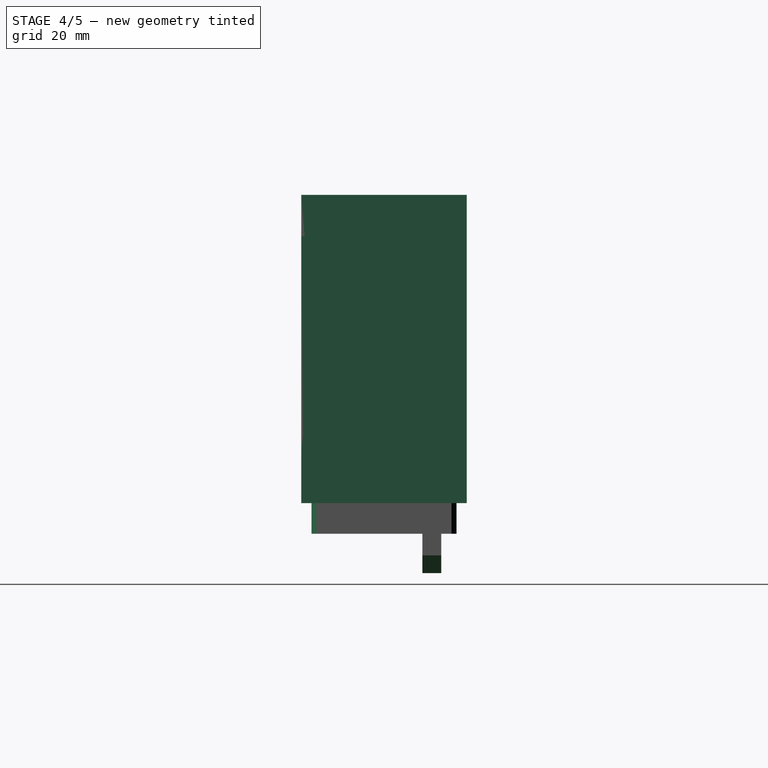
[diagram: stage 4 of 5 — right view after this stage's code; geometry added in this stage tinted green]
FEATURE [PartDesign::Pocket] Pocket008
  BaseFeature = -> Pocket007
  Direction = (-1,-3e-16,-3e-16)
  Length = 1
  Length2 = 5
  Profile = -> Pocket007 [Face24]
  Refine = true
  Suppressed = false
  Type = 0
FEATURE [Sketcher::SketchObject] Sketch013
  ArcFitTolerance = 1e-06
  AttachmentSupport = -> [Pocket008]
  ExternalGeometry = -> [Pocket008]
  FullyConstrained = true
  MakeInternals = false
  MapMode = 5
  Placement = pos=(0,23.8,-8.6e-15) rot=(1,0,0;1.5708rad)
  sketch-geometry (3):
    g0: LineSegment StartX=12 StartY=-4.25 StartZ=0 EndX=8.5 EndY=-7.75 EndZ=0
    g1: LineSegment StartX=8.5 StartY=-7.75 StartZ=0 EndX=12 EndY=-7.75 EndZ=0
    g2: LineSegment StartX=12 StartY=-7.75 StartZ=0 EndX=12 EndY=-4.25 EndZ=0
  constraints (8):
    c: PointOnObject(g0,g-4)
    c: PointOnObject(g0,g-3)
    c: Coincident(g1,g0)
    c: Coincident(g1,g-4)
    c: Coincident(g2,g1)
    c: Coincident(g2,g0)
    c: Equal(g2,g1)
    c: Distance(g2,g2) = 3.5
FEATURE [PartDesign::Pocket] Pocket009
  BaseFeature = -> Pocket008
  Direction = (0,1,-2e-16)
  Length = 5
  Length2 = 5
  Profile = -> Sketch013
  ReferenceAxis = -> Sketch013 [N_Axis]
  Refine = true
  Suppressed = false
  Type = 0
FEATURE [PartDesign::Chamfer] Chamfer
  Angle = 45
  Base = -> Pocket009 [Edge15,Edge17,Edge93,Edge76]
  BaseFeature = -> Pocket009
  ChamferType = 0
  FlipDirection = false
  Refine = true
  Size = 1
  Size2 = 1
  SupportTransform = false
  Suppressed = false
  UseAllEdges = false
FEATURE [Sketcher::SketchObject] Sketch014
  ArcFitTolerance = 1e-06
  AttachmentSupport = -> [Chamfer]
  ExternalGeometry = -> [Chamfer]
  FullyConstrained = true
  MakeInternals = false
  MapMode = 5
  Placement = pos=(0,23.8,-8.6e-15) rot=(1,0,0;1.5708rad)
  sketch-geometry (3):
    g0: ArcOfCircle CenterX=1.2 CenterY=-0.837069 CenterZ=0 NormalX=0 NormalY=0 NormalZ=1 AngleXU=0 Radius=58 StartAngle=0.205531 EndAngle=1.48794
    g1: LineSegment StartX=6 StartY=56.964 StartZ=0 EndX=6 EndY=11 EndZ=0
    g2: LineSegment StartX=57.9793 StartY=11 StartZ=0 EndX=6 EndY=11 EndZ=0
  constraints (9):
    c: Coincident(g0,g-3)
    c: PointOnObject(g0,g-3)
    c: Coincident(g1,g0)
    c: Vertical(g1)
    c: Coincident(g2,g0)
    c: Horizontal(g2)
    c: Coincident(g1,g2)
    c: Distance(g1,g-5) = 8
    c: Distance(g1,g-4) = 8
FEATURE [PartDesign::Pocket] Pocket010
  BaseFeature = -> Chamfer
  Direction = (0,1,-2e-16)
  Length = 8.1
  Length2 = 5
  Profile = -> Sketch014
  ReferenceAxis = -> Sketch014 [N_Axis]
  Refine = true
  Suppressed = false
  Type = 0
FEATURE [Sketcher::SketchObject] Sketch015
  ArcFitTolerance = 1e-06
  AttachmentSupport = -> [Pocket010]
  ExternalGeometry = -> [Pocket010]
  FullyConstrained = true
  MakeInternals = false
  MapMode = 5
  Placement = pos=(119.5,3.82e-14,3.11e-14) rot=(0.57735,0.57735,0.57735;2.0944rad)
  sketch-geometry (3):
    g0: ArcOfCircle CenterX=30 CenterY=14.6482 CenterZ=0 NormalX=0 NormalY=0 NormalZ=1 AngleXU=0 Radius=30 StartAngle=2.34294 EndAngle=3.14159
    g1: ArcOfCircle CenterX=0 CenterY=45.4541 CenterZ=0 NormalX=0 NormalY=0 NormalZ=1 AngleXU=0 Radius=13 StartAngle=5.48454 EndAngle=7.85398
    g2: LineSegment StartX=-1.91e-14 StartY=58.4541 StartZ=0 EndX=0 EndY=14.6482 EndZ=0
  constraints (8):
    c: PointOnObject(g0,g-2)
    c: Tangent(g1,g0) = 1.5708
    c: Perpendicular(g1,g-2)
    c: Radius(g1) = 13
    c: Radius(g0) = 30
    c: Coincident(g2,g1)
    c: Tangent(g2,g0) = -1.5708
    c: Coincident(g1,g-4)
FEATURE [PartDesign::Pad] Pad014
  BaseFeature = -> Pocket010
  Direction = (0,-1,0)
  Length = 10
  Length2 = 10
  Profile = -> Pocket010 [Face26]
  Refine = true
  Suppressed = false
  Type = 3
  UpToFace = -> Pocket010 [Face1]
FEATURE [Sketcher::SketchObject] Sketch016
  ArcFitTolerance = 1e-06
  AttachmentSupport = -> [Pad014]
  ExternalGeometry = -> [Pad014]
  FullyConstrained = true
  MakeInternals = false
  MapMode = 5
  Placement = pos=(0,2e-16,0) rot=(1,0,0;1.5708rad)
  sketch-geometry (4):
    g0: LineSegment StartX=-2 StartY=57.1505 StartZ=0 EndX=-6.4e-15 EndY=57.1505 EndZ=0
    g1: LineSegment StartX=58.7956 StartY=6 StartZ=0 EndX=-2 EndY=6 EndZ=0
    g2: LineSegment StartX=-2 StartY=6 StartZ=0 EndX=-2 EndY=57.1505 EndZ=0
    g3: ArcOfCircle CenterX=1.19999 CenterY=-0.837079 CenterZ=0 NormalX=0 NormalY=0 NormalZ=1 AngleXU=0 Radius=58 StartAngle=0.118155 EndAngle=1.59149
  constraints (10):
    c: Coincident(g0,g-3)
    c: Coincident(g2,g1)
    c: Coincident(g2,g0)
    c: Vertical(g2)
    c: Coincident(g0,g-4)
    c: Horizontal(g1)
    c: Coincident(g1,g-5)
    c: Coincident(g3,g1)
    c: Coincident(g3,g0)
    c: Tangent(g3,g-4)
FEATURE [PartDesign::Pad] Pad015
  BaseFeature = -> Pad014
  Direction = (0,-1,2e-16)
  Length = 10
  Length2 = 10
  Profile = -> Sketch016
  ReferenceAxis = -> Sketch016 [N_Axis]
  Refine = true
  Suppressed = false
  Type = 3
  UpToFace = -> Pad014 [Face70]
FEATURE [PartDesign::Pad] Pad016
  BaseFeature = -> Pad015
  Direction = (1,0,0)
  Length = 10
  Length2 = 10
  Profile = -> Sketch015
  ReferenceAxis = -> Sketch015 [N_Axis]
  Refine = true
  Suppressed = false
  Type = 3
  UpToFace = -> Pad015 [Face13]
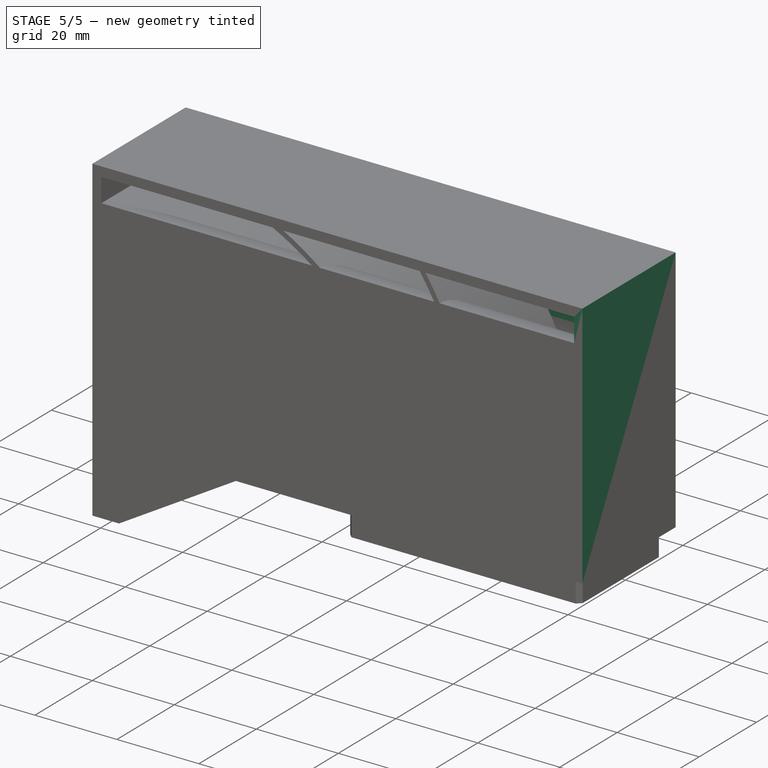
[diagram: stage 5 of 5 — iso view after this stage's code; geometry added in this stage tinted green]
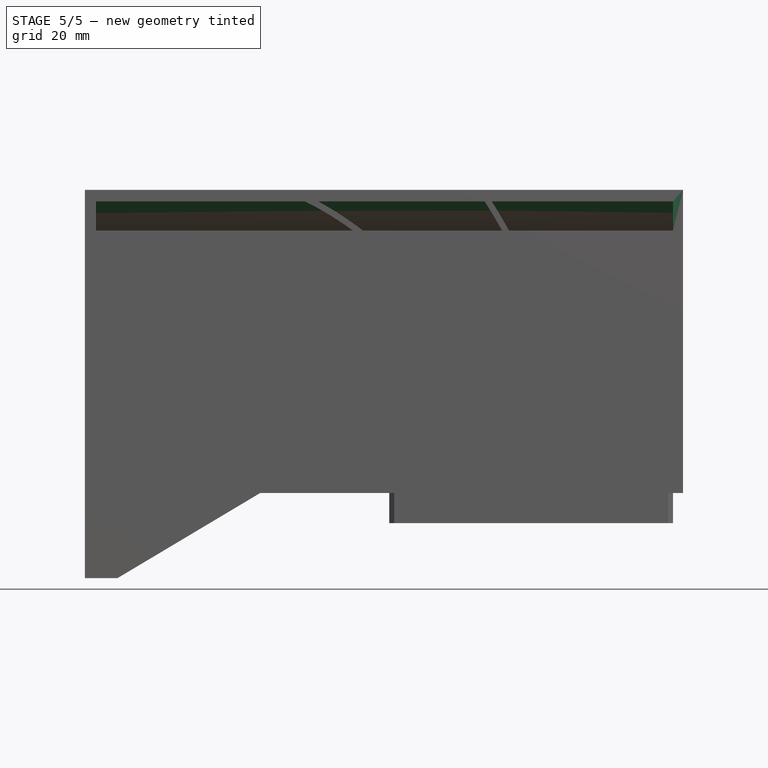
[diagram: stage 5 of 5 — front view after this stage's code; geometry added in this stage tinted green]
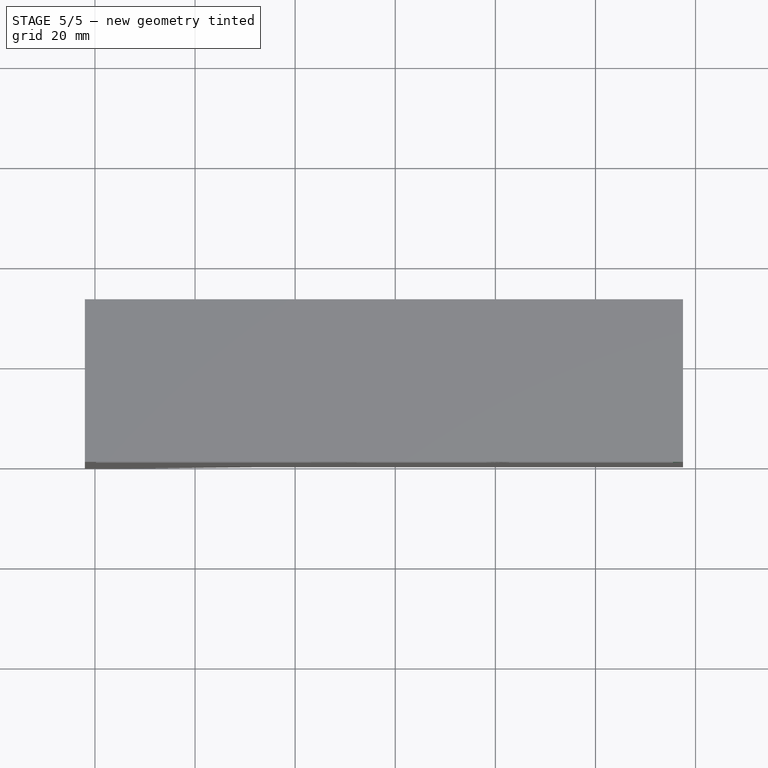
[diagram: stage 5 of 5 — top view after this stage's code; geometry added in this stage tinted green]
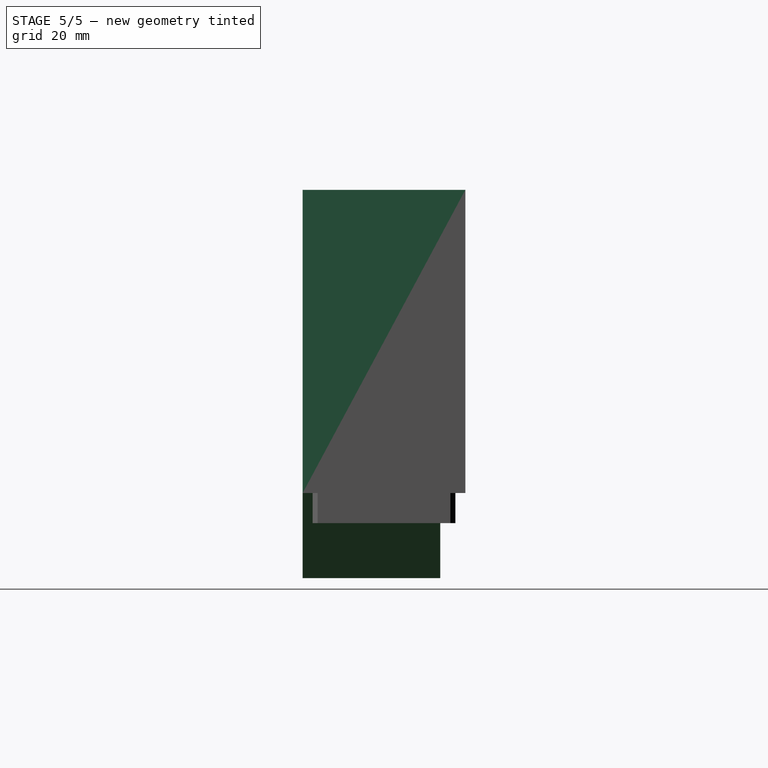
[diagram: stage 5 of 5 — right view after this stage's code; geometry added in this stage tinted green]
FEATURE [PartDesign::Pad] Pad017
  BaseFeature = -> Pad016
  Direction = (0,2e-16,1)
  Length = 1.2
  Length2 = 10
  Profile = -> Pad016 [Face51,Face49,Face47]
  Refine = true
  Suppressed = false
  Type = 0
FEATURE [PartDesign::Pad] Pad018
  BaseFeature = -> Pad017
  Direction = (1,3e-16,3e-16)
  Length = 4
  Length2 = 10
  Profile = -> Pad017 [Face67]
  Refine = true
  Reversed = true
  Suppressed = false
  Type = 0
FEATURE [PartDesign::Pocket] Pocket011
  BaseFeature = -> Pad018
  Direction = (-1,-3e-16,-3e-16)
  Length = 2
  Length2 = 5
  Profile = -> Pad018 [Face11]
  Refine = true
  Suppressed = false
  Type = 0
FEATURE [Part::Feature] Part__Feature  label="M3 Insert Heatset v4"
  Placement = pos=(8.11562,-0.65,7.7236) rot=(1,0,0;1.5708rad)
  shape: bbox 5.685 x 4.003 x 5.695 mm, 129 faces (baked)
FEATURE [Part::Feature] Part__Feature003  label="M3 Insert Heatset v005"
  Placement = pos=(112.116,-0.65,7.7236) rot=(1,0,0;1.5708rad)
  shape: bbox 5.685 x 4.003 x 5.695 mm, 129 faces (baked)
FEATURE [Part::Feature] Part__Feature004  label="COMPOUND006"
  shape: bbox 120.7 x 33.15 x 120.4 mm, 376 faces (baked)
FEATURE [Part::Feature] Part__Feature005  label="COMPOUND007"
  shape: bbox 120.7 x 33.14 x 120.8 mm, 300 faces (baked)
FEATURE [Part::Feature] Part__Feature006  label="COMPOUND008"
  shape: bbox 89 x 23.5 x 89 mm, 478 faces (baked)
FEATURE [App::Part] COMPOUND009
  Group = -> [Part__Feature004,Part__Feature005,Part__Feature006]
  Origin = -> Origin002
FEATURE [App::Part] _2032_blower_fan_2_v17  label="12032 blower fan 2 v17"
  Group = -> [Part__Feature,Part__Feature003,COMPOUND009]
  Origin = -> Origin003
  Placement = pos=(-2.1,32.1,-113.1) rot=(0,0,1;0rad)
FEATURE [PartDesign::Pocket] Pocket012
  BaseFeature = -> Pocket011
  Direction = (0,0,1)
  Length = 0
  Length2 = 5
  Profile = -> Pocket011 [Face3]
  Refine = true
  Suppressed = false
  Type = 3
  UpToFace = -> Pocket011 [Face5]
FEATURE [Sketcher::SketchObject] Sketch017
  ArcFitTolerance = 1e-06
  AttachmentSupport = -> [Pocket012]
  ExternalGeometry = -> [Pocket012]
  FullyConstrained = true
  MakeInternals = false
  MapMode = 5
  Placement = pos=(0,27.5,0) rot=(0,0.707107,0.707107;3.14159rad)
  sketch-geometry (4):
    g0: LineSegment StartX=-33 StartY=6 StartZ=0 EndX=-4.5 EndY=-11 EndZ=0
    g1: LineSegment StartX=2 StartY=-11 StartZ=0 EndX=2 EndY=6 EndZ=0
    g2: LineSegment StartX=-33 StartY=6 StartZ=0 EndX=2 EndY=6 EndZ=0
    g3: LineSegment StartX=-4.5 StartY=-11 StartZ=0 EndX=2 EndY=-11 EndZ=0
  constraints (11):
    c: PointOnObject(g0,g-3)
    c: Coincident(g1,g-5)
    c: Vertical(g1)
    c: Coincident(g2,g0)
    c: Coincident(g2,g1)
    c: Coincident(g3,g0)
    c: Coincident(g3,g1)
    c: Horizontal(g3)
    c: Distance(g2,g2) = 35
    c: Distance(g1,g1) = 17
    c: Distance(g3,g3) = 6.5
FEATURE [PartDesign::Pad] Pad019
  BaseFeature = -> Pocket012
  Direction = (0,1,-2e-16)
  Length = 10
  Length2 = 10
  Profile = -> Sketch017
  ReferenceAxis = -> Sketch017 [N_Axis]
  Refine = true
  Suppressed = false
  Type = 3
  UpToFace = -> Pocket012 [Face3]
FEATURE [PartDesign::Line] DatumLine
  AttacherType = Attacher::AttachEngineLine
  AttachmentSupport = -> [Pocket012]
  Length = 20
  MapMode = 19
  Placement = pos=(6,27.5,-1.75) rot=(0,-0.707107,0.707107;3.14159rad)
  ResizeMode = 0
FEATURE [Sketcher::SketchObject] Sketch018
  ArcFitTolerance = 1e-06
  AttachmentSupport = -> [Pad019]
  ExternalGeometry = -> [DatumLine]
  FullyConstrained = true
  MakeInternals = false
  MapMode = 5
  Placement = pos=(0,27.5,-9.1e-15) rot=(0,0.707107,0.707107;3.14159rad)
  sketch-geometry (1):
    g0: Circle CenterX=-6 CenterY=-1.75 CenterZ=0 NormalX=0 NormalY=0 NormalZ=1 AngleXU=0 Radius=2.1
  constraints (2):
    c: Coincident(g0,g-3)
    c: Diameter(g0) = 4.2
FEATURE [PartDesign::Pocket] Pocket013
  BaseFeature = -> Pad019
  Direction = (0,-1,2e-16)
  Length = 5.1
  Length2 = 5
  Profile = -> Sketch018
  ReferenceAxis = -> Sketch018 [N_Axis]
  Refine = true
  Suppressed = false
  Type = 0
FEATURE [Sketcher::SketchObject] Sketch019
  ArcFitTolerance = 1e-06
  AttachmentSupport = -> [Pocket013]
  ExternalGeometry = -> [Pocket013]
  FullyConstrained = true
  MakeInternals = false
  MapMode = 5
  Placement = pos=(115.5,3.7e-14,3e-14) rot=(0.57735,-0.57735,-0.57735;2.0944rad)
  sketch-geometry (3):
    g0: ArcOfCircle CenterX=-7.5 CenterY=42.2778 CenterZ=0 NormalX=0 NormalY=0 NormalZ=1 AngleXU=0 Radius=23 StartAngle=1.5708 EndAngle=3.14159
    g1: LineSegment StartX=-30.5 StartY=42.2778 StartZ=0 EndX=-30.5 EndY=65.2778 EndZ=0
    g2: LineSegment StartX=-30.5 StartY=65.2778 StartZ=0 EndX=-7.5 EndY=65.2778 EndZ=0
  constraints (8):
    c: Tangent(g0,g-4) = -1.5708
    c: Radius(g0) = 23
    c: PointOnObject(g0,g-3)
    c: Coincident(g1,g0)
    c: Vertical(g1)
    c: Coincident(g2,g1)
    c: Tangent(g2,g0) = 1.5708
    c: Horizontal(g2)
FEATURE [PartDesign::Pad] Pad020
  BaseFeature = -> Pocket013
  Direction = (-1,0,0)
  Length = 10
  Length2 = 10
  Profile = -> Sketch019
  ReferenceAxis = -> Sketch019 [N_Axis]
  Refine = true
  Suppressed = false
  Type = 3
  UpToFace = -> Pocket013 [Face3]
FEATURE [Sketcher::SketchObject] Sketch020
  ArcFitTolerance = 1e-06
  AttachmentSupport = -> [Pad020]
  ExternalGeometry = -> [Pad020]
  FullyConstrained = true
  MakeInternals = false
  MapMode = 5
  Placement = pos=(117.5,3.76e-14,3.05e-14) rot=(0.57735,0.57735,0.57735;2.0944rad)
  sketch-geometry (3):
    g0: LineSegment StartX=-3.76e-14 StartY=65.2778 StartZ=0 EndX=0 EndY=64.2778 EndZ=0
    g1: LineSegment StartX=0 StartY=64.2778 StartZ=0 EndX=7.5 EndY=65.2778 EndZ=0
    g2: LineSegment StartX=7.5 StartY=65.2778 StartZ=0 EndX=-3.73e-14 EndY=65.2778 EndZ=0
  constraints (7):
    c: Coincident(g0,g-3)
    c: PointOnObject(g0,g-2)
    c: Coincident(g1,g0)
    c: Coincident(g1,g-3)
    c: Coincident(g2,g1)
    c: Coincident(g2,g0)
    c: Distance(g0,g0) = 1
FEATURE [PartDesign::Pad] Pad021
  BaseFeature = -> Pad020
  Direction = (1,0,0)
  Length = 10
  Length2 = 10
  Profile = -> Sketch020
  ReferenceAxis = -> Sketch020 [N_Axis]
  Refine = true
  Suppressed = false
  Type = 3
  UpToFace = -> Pad020 [Face24]
FEATURE [PartDesign::Body] Body  label="k1_side_fan_duct"
  AllowCompound = false
  BaseFeature = -> Part__Feature002
  Group = -> [BaseFeature,Pad,Pocket,DatumPlane,Sketch,Sketch001,Pad001,Pad002,Pocket001,Sketch002,Pad003,Pad004,Pocket002,Pad005,Sketch003,Pocket003,Sketch004,Pad006,Sketch005,Pocket004,Sketch006,Pad007,Sketch007,Pad008,Sketch008,Pad009,Sketch009,Pocket005,Sketch010,Pad010,Sketch011,Pocket006,Sketch012,Pad011,Pad012,Pad013,Pocket007,Pocket008,Sketch013,Pocket009,Chamfer,Sketch014,Pocket010,Sketch015,Pad014,+16 more]
  Origin = -> Origin
  Tip = -> Pad021
FEATURE [App::Part] Part  label="k1_side_fan_duct_part"
  Group = -> [Part__Feature002,Body,_2032_blower_fan_2_v17]
  Origin = -> Origin001
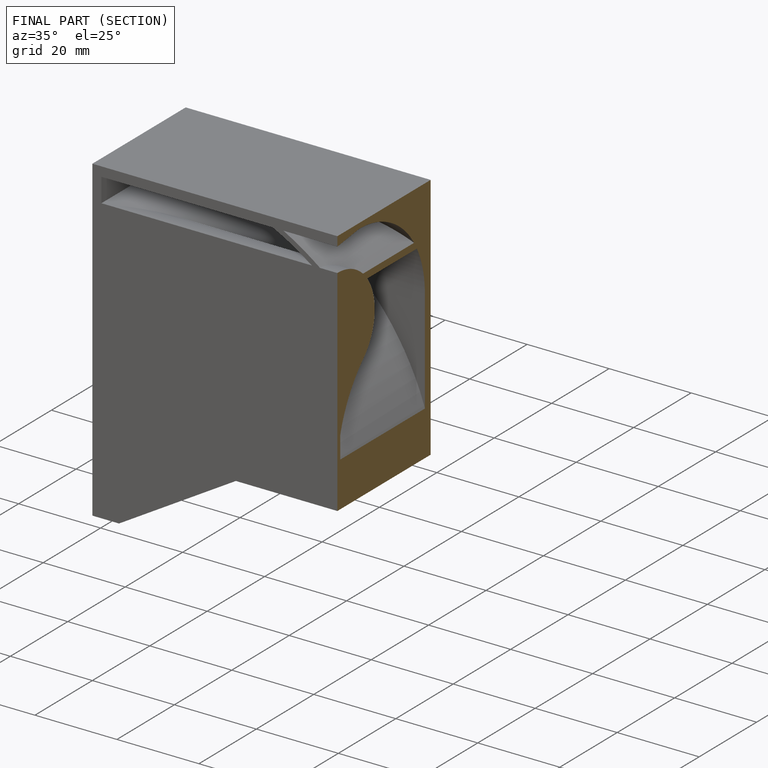
[diagram: finished part — half-section view (interior)]
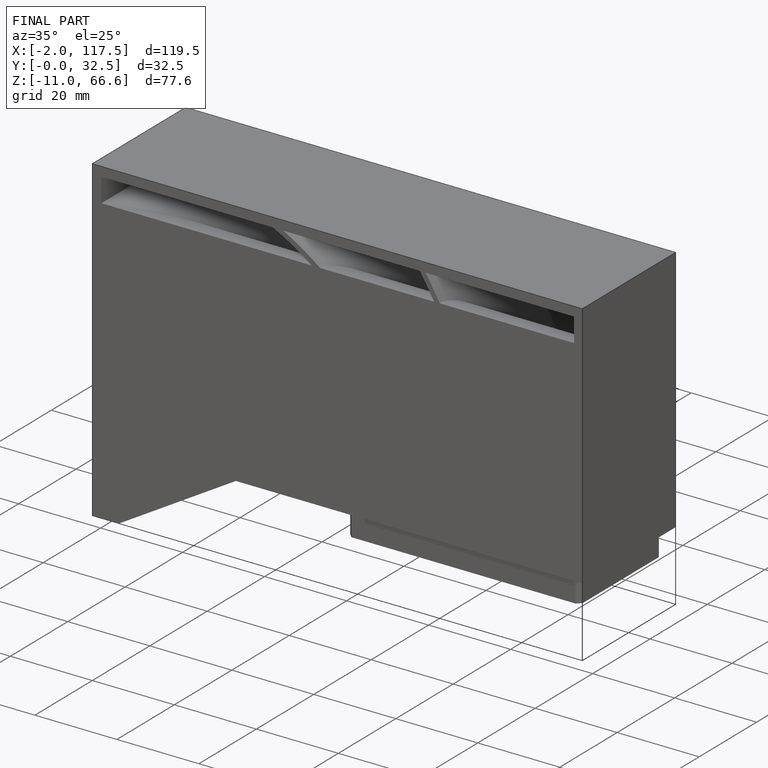
[diagram: finished part — iso view with bounding-box wireframe]
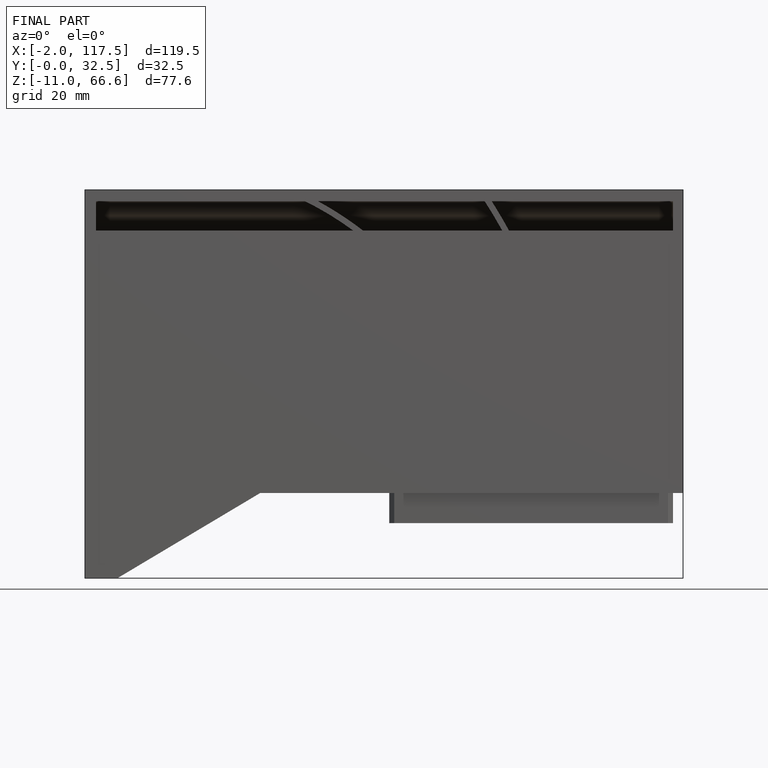
[diagram: finished part — front view with bounding-box wireframe]
